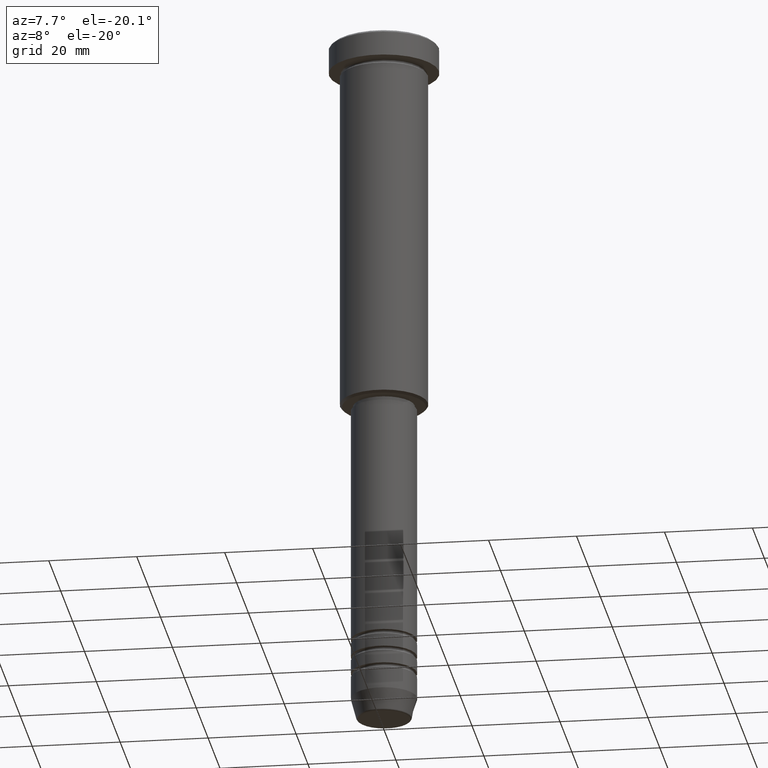
[diagram: clean part render]
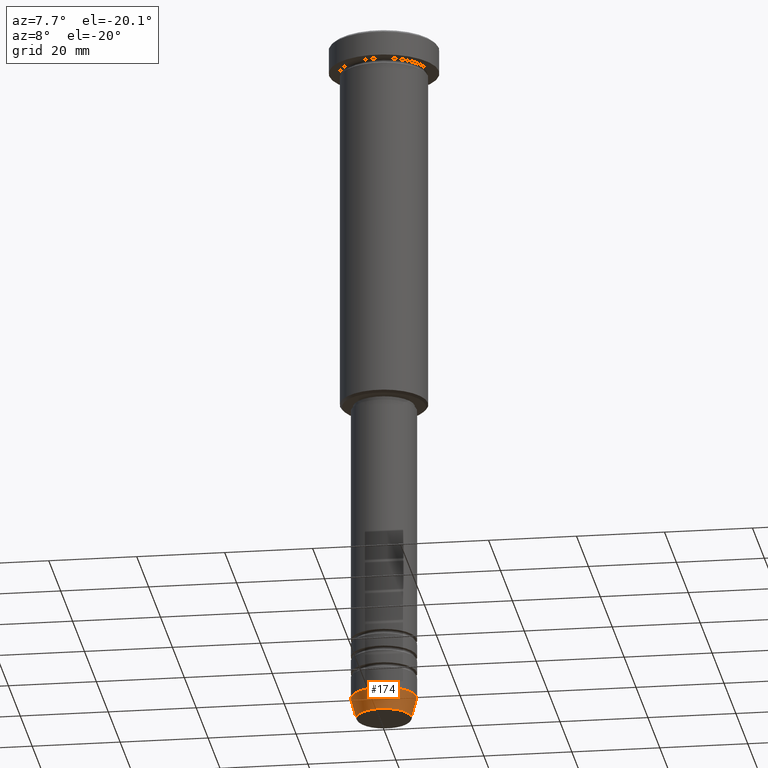
[diagram: same view with one face highlighted and labeled with its STEP entity id]
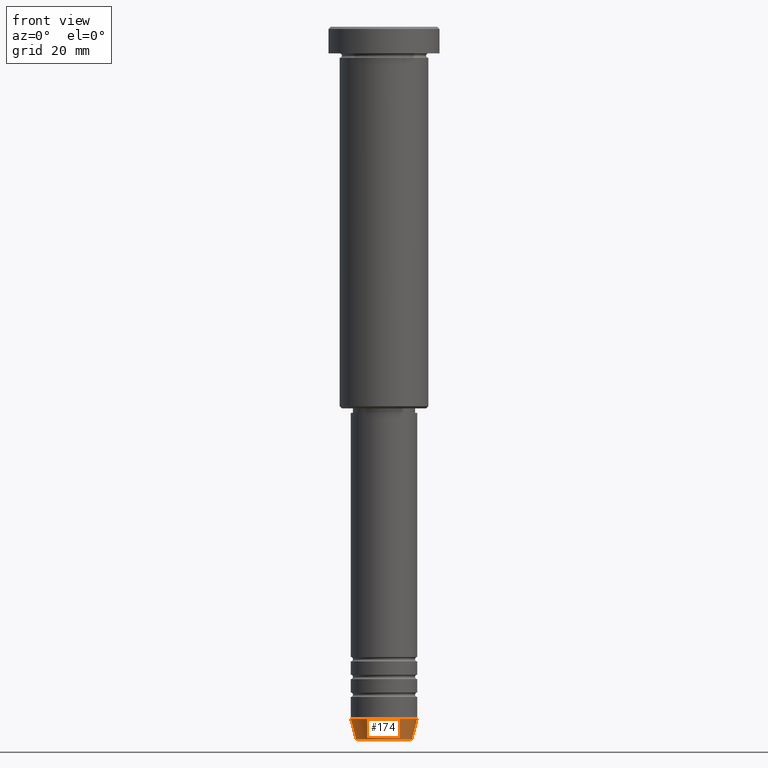
[diagram: same view with one face highlighted and labeled with its STEP entity id]
A machine part, auxiliary view. The second image highlights one B-rep face of the part: STEP entity #174.
A second angle (front view) of the same face is appended — the face is thin or edge-on in the first view.
In plain terms, the highlighted conical surface has half-angle 15 deg.
Its self-contained STEP definition (entity closure, byte-faithful):
#26 = EDGE_CURVE ( 'NONE', #778, #334, #481, .T. ) ;
#64 = DIRECTION ( 'NONE',  ( 1.000000000000000000, 0.000000000000000000, 0.000000000000000000 ) ) ;
#77 = DIRECTION ( 'NONE',  ( 1.000000000000000000, 0.000000000000000000, 0.000000000000000000 ) ) ;
#84 = DIRECTION ( 'NONE',  ( 1.000000000000000000, 0.000000000000000000, 0.000000000000000000 ) ) ;
#126 = CIRCLE ( 'NONE', #839, 6.259553456999438659 ) ;
#174 = ADVANCED_FACE ( 'NONE', ( #994 ), #375, .T. ) ;
#220 = LINE ( 'NONE', #940, #1150 ) ;
#229 = ORIENTED_EDGE ( 'NONE', *, *, #348, .T. ) ;
#244 = VERTEX_POINT ( 'NONE', #810 ) ;
#249 = DIRECTION ( 'NONE',  ( -0.000000000000000000, -0.000000000000000000, 1.000000000000000000 ) ) ;
#267 = CARTESIAN_POINT ( 'NONE',  ( 0.000000000000000000, 0.000000000000000000, -160.6294095225512137 ) ) ;
#274 = CARTESIAN_POINT ( 'NONE',  ( 0.000000000000000000, 0.000000000000000000, -155.9999999999999716 ) ) ;
#334 = VERTEX_POINT ( 'NONE', #1118 ) ;
#348 = EDGE_CURVE ( 'NONE', #551, #334, #755, .T. ) ;
#350 = ORIENTED_EDGE ( 'NONE', *, *, #26, .F. ) ;
#375 = CONICAL_SURFACE ( 'NONE', #799, 7.500000000000000000, 0.2617993877991500740 ) ;
#413 = VECTOR ( 'NONE', #722, 1000.000000000000000 ) ;
#481 = CIRCLE ( 'NONE', #1036, 7.500000000000000000 ) ;
#492 = DIRECTION ( 'NONE',  ( -0.2588190451025213501, 3.169619151431772337E-17, 0.9659258262890680902 ) ) ;
#495 = ORIENTED_EDGE ( 'NONE', *, *, #879, .T. ) ;
#511 = EDGE_CURVE ( 'NONE', #244, #778, #220, .T. ) ;
#551 = VERTEX_POINT ( 'NONE', #774 ) ;
#722 = DIRECTION ( 'NONE',  ( 0.2588190451025213501, 0.000000000000000000, 0.9659258262890680902 ) ) ;
#755 = LINE ( 'NONE', #795, #413 ) ;
#774 = CARTESIAN_POINT ( 'NONE',  ( 6.259553456999438659, 0.000000000000000000, -160.6294095225512137 ) ) ;
#778 = VERTEX_POINT ( 'NONE', #1136 ) ;
#785 = DIRECTION ( 'NONE',  ( -0.000000000000000000, -0.000000000000000000, 1.000000000000000000 ) ) ;
#795 = CARTESIAN_POINT ( 'NONE',  ( 7.500000000000000000, 0.000000000000000000, -155.9999999999999716 ) ) ;
#799 = AXIS2_PLACEMENT_3D ( 'NONE', #274, #1161, #84 ) ;
#810 = CARTESIAN_POINT ( 'NONE',  ( -6.259553456999438659, 8.425296549405629486E-16, -160.6294095225512137 ) ) ;
#839 = AXIS2_PLACEMENT_3D ( 'NONE', #267, #249, #64 ) ;
#879 = EDGE_CURVE ( 'NONE', #244, #551, #126, .T. ) ;
#889 = EDGE_LOOP ( 'NONE', ( #1126, #495, #229, #350 ) ) ;
#940 = CARTESIAN_POINT ( 'NONE',  ( -7.500000000000000000, 9.184850993605147944E-16, -155.9999999999999716 ) ) ;
#984 = CARTESIAN_POINT ( 'NONE',  ( 0.000000000000000000, 0.000000000000000000, -155.9999999999999716 ) ) ;
#994 = FACE_OUTER_BOUND ( 'NONE', #889, .T. ) ;
#1036 = AXIS2_PLACEMENT_3D ( 'NONE', #984, #785, #77 ) ;
#1118 = CARTESIAN_POINT ( 'NONE',  ( 7.500000000000000000, 0.000000000000000000, -155.9999999999999716 ) ) ;
#1126 = ORIENTED_EDGE ( 'NONE', *, *, #511, .F. ) ;
#1136 = CARTESIAN_POINT ( 'NONE',  ( -7.500000000000000000, 9.184850993605147944E-16, -155.9999999999999716 ) ) ;
#1150 = VECTOR ( 'NONE', #492, 1000.000000000000000 ) ;
#1161 = DIRECTION ( 'NONE',  ( -0.000000000000000000, -0.000000000000000000, 1.000000000000000000 ) ) ;